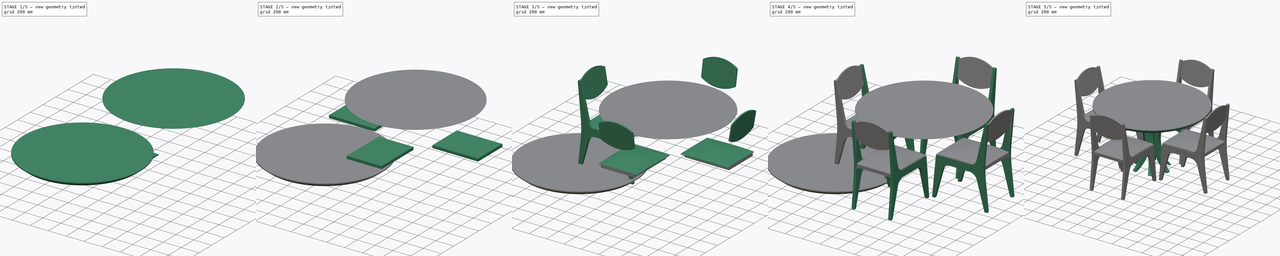
[diagram: build sequence overview — one tinted view per stage of 5, left to right]
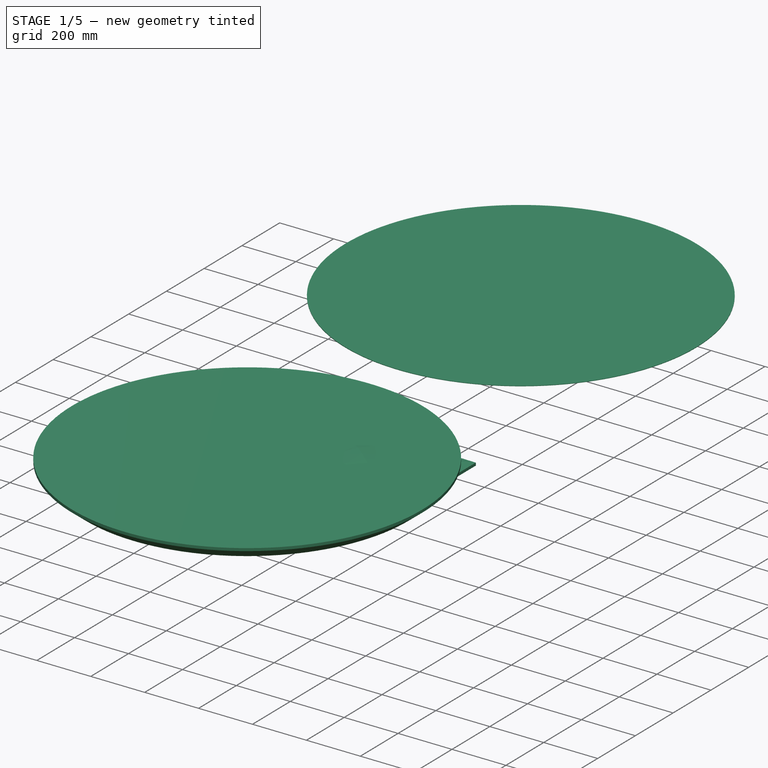
[diagram: stage 1 of 5 — iso view after this stage's code; geometry added in this stage tinted green]
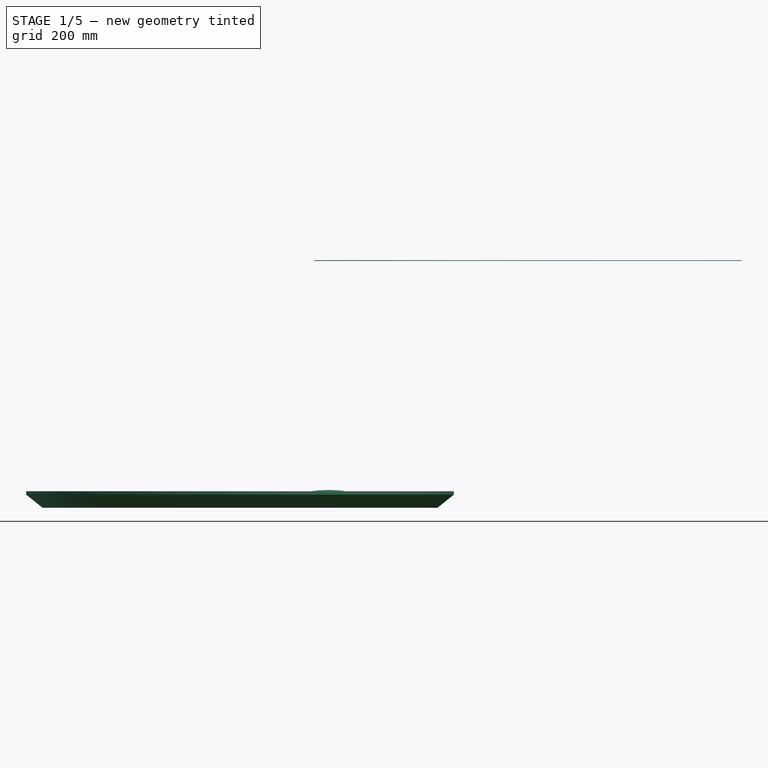
[diagram: stage 1 of 5 — front view after this stage's code; geometry added in this stage tinted green]
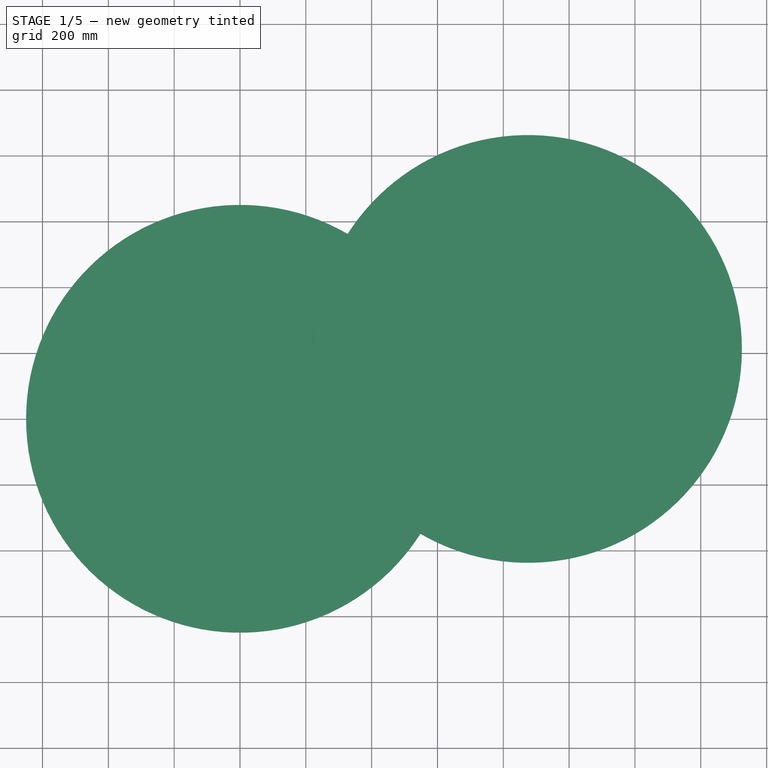
[diagram: stage 1 of 5 — top view after this stage's code; geometry added in this stage tinted green]
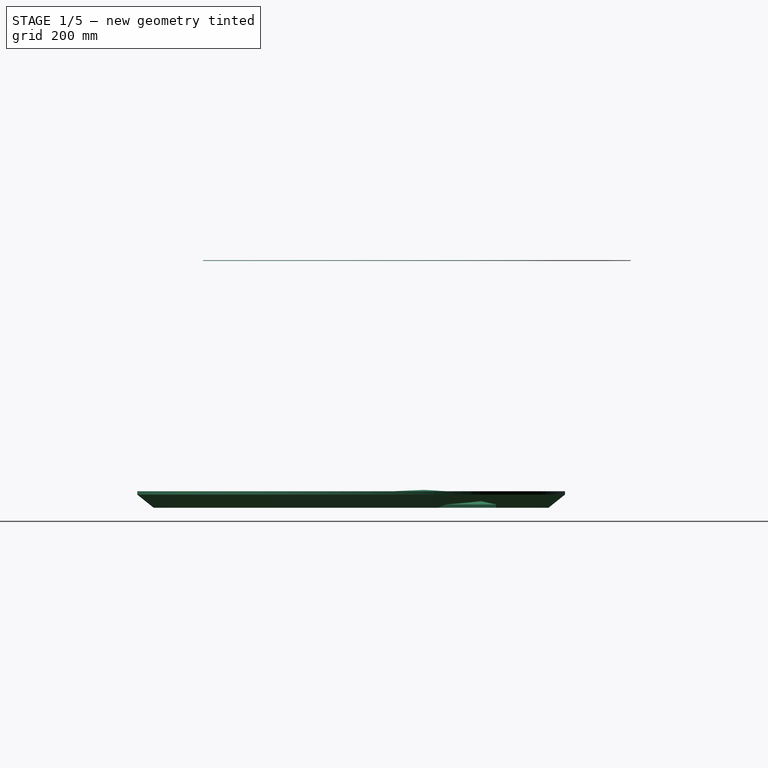
[diagram: stage 1 of 5 — right view after this stage's code; geometry added in this stage tinted green]
FCSTD DOCUMENT  (FreeCAD 0.21R33668 +26 (Git))
Label: Mesa redonda
License: All rights reserved
objects: Sketcher::SketchObject×10, Part::FeaturePython×9, Part::Extrusion×6, PartDesign::Chamfer×2, PartDesign::Body×2, PartDesign::Pad×1, Part::Part2DObjectPython×1, Surface::Filling×1, Part::Offset×1, PartDesign::Fillet×1, Part::Compound×1
note: 39 computed .brp shape members not serialized (recipe doc carries the construction recipe); baked Part::Feature solids carry a one-line shape summary decoded from their .brp

FEATURE [Part::FeaturePython] Point  label="Propriedades Mesa Circular"  # WARN: FeaturePython — macro-defined, semantics opaque (R4)
  Altura = 750
  AlturaAcento = 450
  AlturaEscora = 900
  ComprimentoAcento = 450
  Diametro = 1300
  EspessuraMadeira = 30
  EspessuraPe = 50
  EspessuraTampo = 50
  LarguraAcento = 450
  LarguraPe = 30
  NumeroCadeiras = 4
  X = 0
  Y = 0
  Z = 0
FEATURE [Sketcher::SketchObject] Sketch
  FullyConstrained = true
  MapMode = 5
  Support = -> [XY_Plane]
  expr: Constraints[1] = <<Propriedades Mesa Circular>>.Diametro
  sketch-geometry (1):
    g0: Circle CenterX=0 CenterY=0 CenterZ=0 NormalX=0 NormalY=0 NormalZ=1 AngleXU=0 Radius=650
  constraints (2):
    c: Coincident(g0,g-1)
    c: Diameter(g0) = 1300
FEATURE [PartDesign::Pad] Pad
  Direction = (0,0,1)
  Length = 50
  Length2 = 10
  Profile = -> Sketch
  ReferenceAxis = -> Sketch [N_Axis]
  Type = 0
  expr: Length = <<Propriedades Mesa Circular>>.EspessuraTampo
FEATURE [Sketcher::SketchObject] Sketch009
  FullyConstrained = true
  expr: Constraints[2] = <<Propriedades Mesa Circular>>.ComprimentoAcento + 3 * <<Propriedades Mesa Circular>>.LarguraPe
  sketch-geometry (1):
    g0: LineSegment StartX=0 StartY=0 StartZ=0 EndX=540 EndY=0 EndZ=0
  constraints (3):
    c: Coincident(g0,g-1)
    c: Horizontal(g0)
    c: DistanceX(g0,g0) = 540
FEATURE [Sketcher::SketchObject] Sketch010
  FullyConstrained = true
  expr: Constraints[2] = <<Propriedades Mesa Circular>>.LarguraAcento - 1 cm
  sketch-geometry (1):
    g0: LineSegment StartX=0 StartY=0 StartZ=0 EndX=0 EndY=440 EndZ=0
  constraints (3):
    c: Coincident(g0,g-1)
    c: Vertical(g0)
    c: DistanceY(g0,g0) = 440
FEATURE [Part::Part2DObjectPython] Clone2D  label="Sketch009 (2D)"  # Draft 2D object (typed FeaturePython)
  Fuse = false
  Objects = -> [Sketch009]
  Placement = pos=(0,440,0) rot=(0,0,1;0rad)
  Scale = (1,1,1)
  expr: .Placement.Base.y = <<Propriedades Mesa Circular>>.LarguraAcento - 1 cm
FEATURE [Sketcher::SketchObject] Sketch011
  FullyConstrained = true
  Placement = pos=(540,6.57e-14,0) rot=(0,0,1;0rad)
  expr: .Placement.Base.x = <<Propriedades Mesa Circular>>.ComprimentoAcento + 3 * <<Propriedades Mesa Circular>>.LarguraPe
  expr: Constraints[2] = <<Propriedades Mesa Circular>>.LarguraAcento - 1 cm
  sketch-geometry (1):
    g0: LineSegment StartX=0 StartY=0 StartZ=0 EndX=0 EndY=440 EndZ=0
  constraints (3):
    c: Coincident(g0,g-1)
    c: Vertical(g0)
    c: DistanceY(g0,g0) = 440
FEATURE [Sketcher::SketchObject] Sketch013
  FullyConstrained = false
  Placement = pos=(225,3.31e-14,0) rot=(0.57735,0.57735,0.57735;2.0944rad)
  expr: .Placement.Base.x = <<Propriedades Mesa Circular>>.ComprimentoAcento / 2
  sketch-geometry (6):
    g0: Circle CenterX=78.9269 CenterY=31.6573 CenterZ=0 NormalX=0 NormalY=0 NormalZ=1 AngleXU=0 Radius=1
    g1: Circle CenterX=226.39 CenterY=57.9417 CenterZ=0 NormalX=0 NormalY=0 NormalZ=1 AngleXU=0 Radius=1
    g2: Circle CenterX=385.699 CenterY=24.2733 CenterZ=0 NormalX=0 NormalY=0 NormalZ=1 AngleXU=0 Radius=1
    g3: BSplineCurve PolesCount=3 KnotsCount=2 Degree=2 IsPeriodic=0
    g4: GeomPoint X=78.9269 Y=31.6573 Z=0
    g5: GeomPoint X=385.699 Y=24.2733 Z=0
  constraints (8):
    c: Weight(g0) = 1
    c: Equal(g0,g1)
    c: Equal(g0,g2)
    c: InternalAlignment(g0,g3)
    c: InternalAlignment(g1,g3)
    c: InternalAlignment(g2,g3)
    c: InternalAlignment(g4,g3)
    c: InternalAlignment(g5,g3)
FEATURE [Surface::Filling] Surface
  Anisotropy = false
  BoundaryEdges = -> [Sketch010,Sketch009,Sketch011,Clone2D]
  BoundaryOrder = [0,0,0,0]
  Degree = 3
  Iterations = 2
  MaximumDegree = 8
  MaximumSegments = 9
  PointsOnCurve = 15
  TolAngular = 0.01
  TolCurvature = 0.1
  Tolerance2d = 1e-05
  Tolerance3d = 0.0001
  UnboundEdges = -> [Sketch013]
  UnboundOrder = [0]
FEATURE [Part::Offset] Offset
  Fill = true
  Intersection = false
  Join = 0
  Mode = 0
  SelfIntersection = false
  Source = -> Surface
  Value = 10
FEATURE [PartDesign::Chamfer] Chamfer001
  Angle = 45
  Base = -> Pad [Face2]
  BaseFeature = -> Pad
  ChamferType = 1
  FlipDirection = false
  Size = 50
  Size2 = 40
  SupportTransform = false
  UseAllEdges = false
  expr: Size = <<Propriedades Mesa Circular>>.EspessuraTampo
  expr: Size2 = <<Propriedades Mesa Circular>>.EspessuraTampo * 0.8
FEATURE [PartDesign::Body] Body  label="Tampo-mesa"
  Group = -> [Sketch,Pad,Chamfer001]
  Origin = -> Origin
  Placement = pos=(875,200,700) rot=(0,0,1;0rad)
  Tip = -> Chamfer001
  expr: .Placement.Base.x = <<Propriedades Mesa Circular>>.Diametro / 2 + <<Propriedades Mesa Circular>>.ComprimentoAcento / 2
  expr: .Placement.Base.z = <<Propriedades Mesa Circular>>.Altura - <<Propriedades Mesa Circular>>.EspessuraTampo
FEATURE [Part::Extrusion] Extrude006  label="Verniz mesa"
  Base = -> Sketch
  Dir = (0,0,1)
  DirMode = 2
  FaceMakerClass = Part::FaceMakerBullseye
  LengthFwd = 2
  LengthRev = 0
  Placement = pos=(875,200,750) rot=(0,0,1;0rad)
  Solid = true
  Symmetric = false
  expr: .Placement.Base.x = <<Propriedades Mesa Circular>>.Diametro / 2 + <<Propriedades Mesa Circular>>.ComprimentoAcento / 2
  expr: .Placement.Base.z = <<Propriedades Mesa Circular>>.Altura
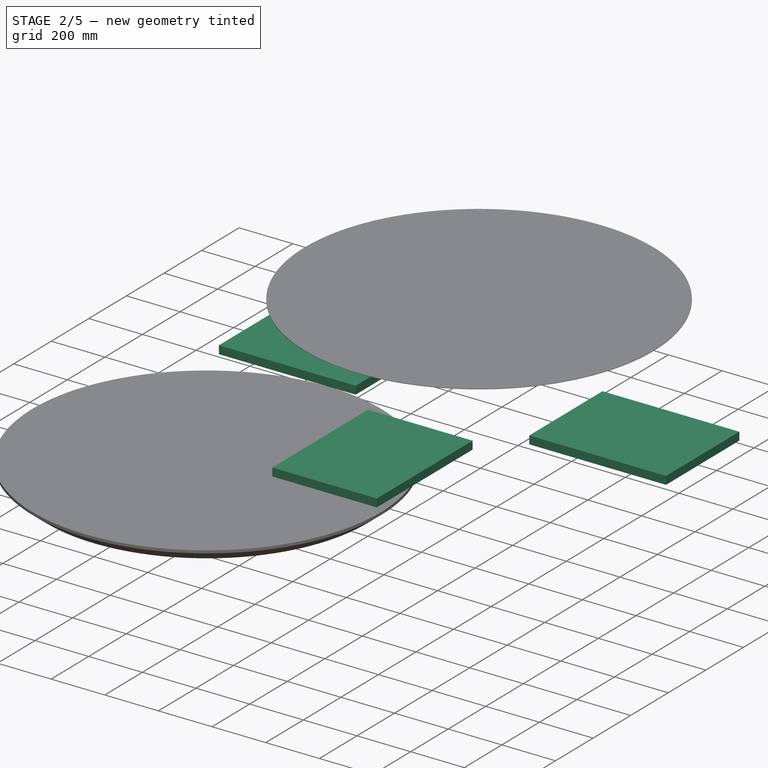
[diagram: stage 2 of 5 — iso view after this stage's code; geometry added in this stage tinted green]
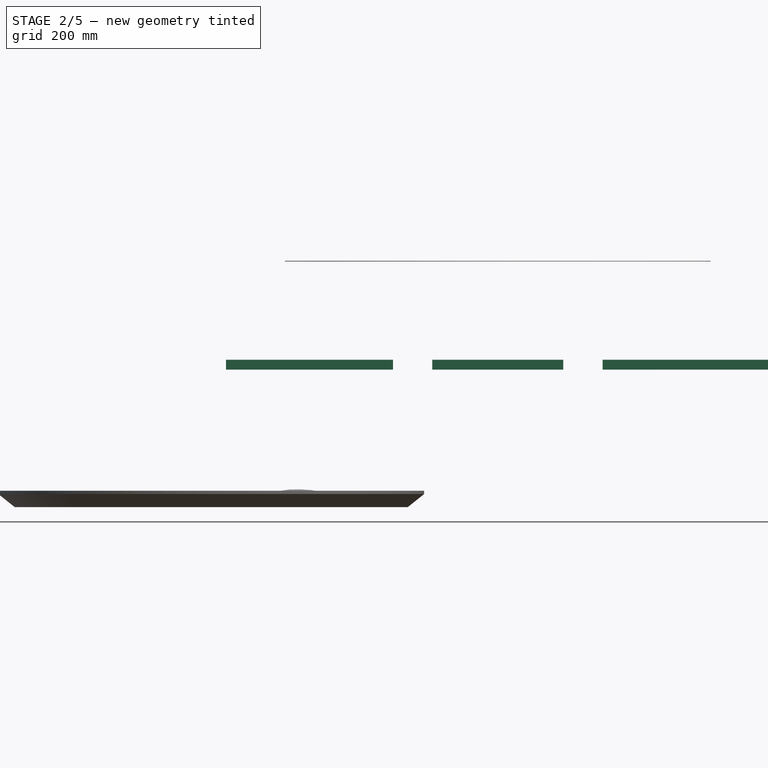
[diagram: stage 2 of 5 — front view after this stage's code; geometry added in this stage tinted green]
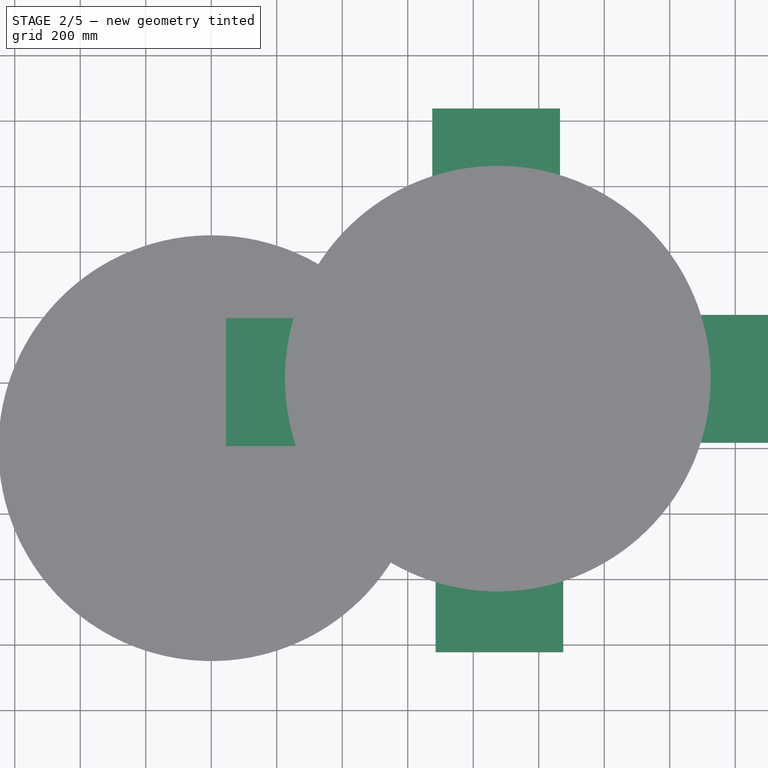
[diagram: stage 2 of 5 — top view after this stage's code; geometry added in this stage tinted green]
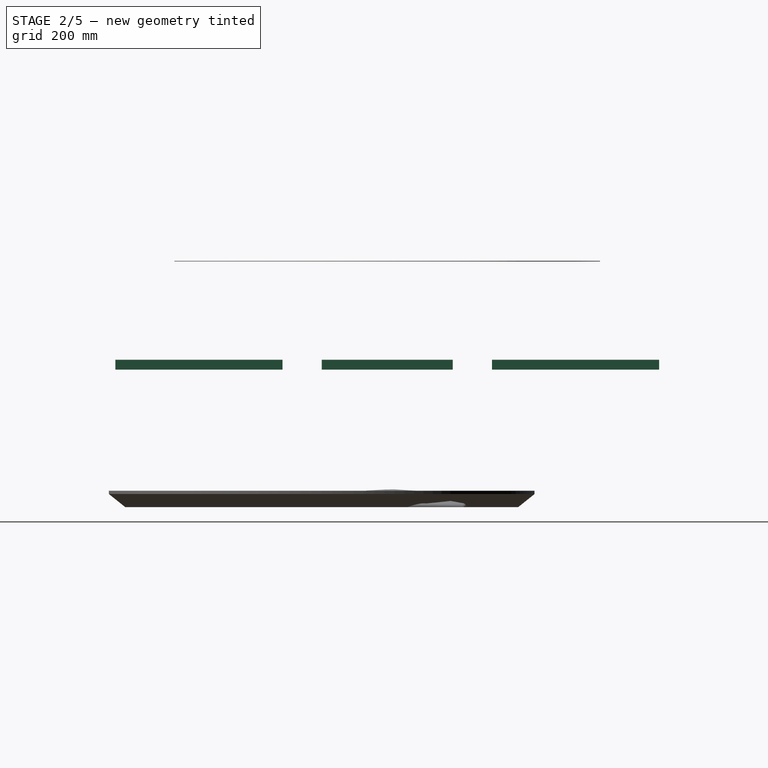
[diagram: stage 2 of 5 — right view after this stage's code; geometry added in this stage tinted green]
FEATURE [Sketcher::SketchObject] Sketch006
  FullyConstrained = true
  expr: Constraints[10] = <<Propriedades Mesa Circular>>.ComprimentoAcento + 3 * <<Propriedades Mesa Circular>>.LarguraPe - <<Propriedades Mesa Circular>>.EspessuraMadeira
  expr: Constraints[9] = <<Propriedades Mesa Circular>>.LarguraAcento - 2 * <<Propriedades Mesa Circular>>.EspessuraMadeira
  sketch-geometry (4):
    g0: LineSegment StartX=0 StartY=0 StartZ=0 EndX=510 EndY=0 EndZ=0
    g1: LineSegment StartX=510 StartY=0 StartZ=0 EndX=510 EndY=390 EndZ=0
    g2: LineSegment StartX=510 StartY=390 StartZ=0 EndX=0 EndY=390 EndZ=0
    g3: LineSegment StartX=0 StartY=390 StartZ=0 EndX=0 EndY=0 EndZ=0
  constraints (11):
    c: Coincident(g0,g1)
    c: Coincident(g1,g2)
    c: Coincident(g2,g3)
    c: Coincident(g3,g0)
    c: Horizontal(g0)
    c: Horizontal(g2)
    c: Vertical(g1)
    c: Vertical(g3)
    c: Coincident(g0,g-1)
    c: DistanceY(g1,g1) = 390
    c: DistanceX(g2,g2) = 510
FEATURE [Part::Extrusion] Extrude005  label="Extrude007"
  Base = -> Sketch006
  Dir = (0,0,1)
  DirMode = 2
  FaceMakerClass = Part::FaceMakerBullseye
  LengthFwd = 30
  LengthRev = 0
  Placement = pos=(45,0,420) rot=(0,0,1;0rad)
  Solid = true
  Symmetric = false
  expr: .Placement.Base.x = <<Propriedades Mesa Circular>>.LarguraPe * 1.5
  expr: .Placement.Base.z = <<Propriedades Mesa Circular>>.AlturaAcento - <<Propriedades Mesa Circular>>.LarguraPe
  expr: LengthFwd = <<Propriedades Mesa Circular>>.LarguraPe
FEATURE [PartDesign::Fillet] Fillet001
  Base = -> Offset [Face6,Edge7,Edge5,Edge8,Edge10]
  Radius = 9.8
  SupportTransform = false
  UseAllEdges = false
FEATURE [Part::FeaturePython] Array006  label="Tampo Cadeira "  # Draft array (typed FeaturePython)
  Angle = 360
  ArrayType = 1
  Axis = (0,0,1)
  Base = -> Extrude005
  Center = (875,200,0)
  Count = 4
  Fuse = true
  IntervalAxis = (0,0,0)
  IntervalX = (1000,0,0)
  IntervalY = (0,100,0)
  IntervalZ = (0,0,100)
  NumberCircles = 3
  NumberPolar = 4
  NumberX = 2
  NumberY = 1
  NumberZ = 1
  RadialDistance = 50
  Symmetry = 1
  TangentialDistance = 25
  expr: .Center.x = <<Propriedades Mesa Circular>>.Diametro / 2 + <<Propriedades Mesa Circular>>.ComprimentoAcento / 2
  expr: NumberPolar = <<Propriedades Mesa Circular>>.NumeroCadeiras
FEATURE [PartDesign::Chamfer] Chamfer
  Angle = 45
  Base = -> Fillet001
  BaseFeature = -> Fillet001
  ChamferType = 1
  FlipDirection = false
  Size = 5
  Size2 = 1
  SupportTransform = false
  UseAllEdges = false
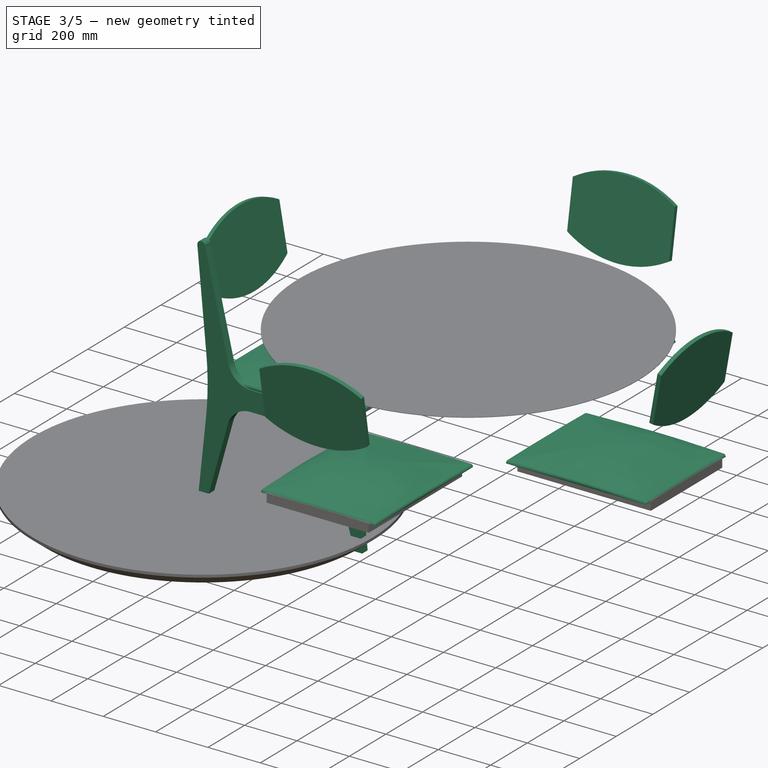
[diagram: stage 3 of 5 — iso view after this stage's code; geometry added in this stage tinted green]
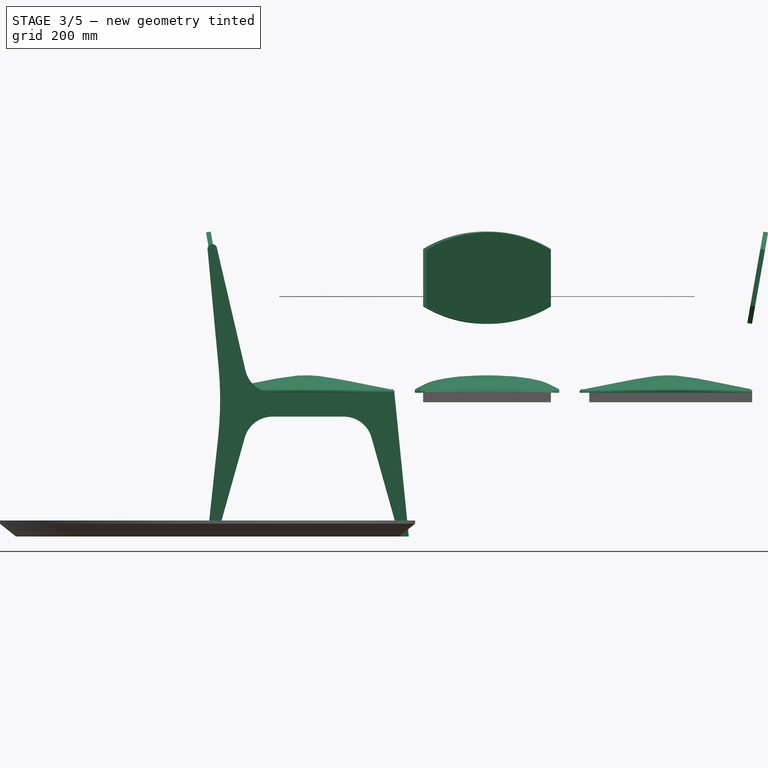
[diagram: stage 3 of 5 — front view after this stage's code; geometry added in this stage tinted green]
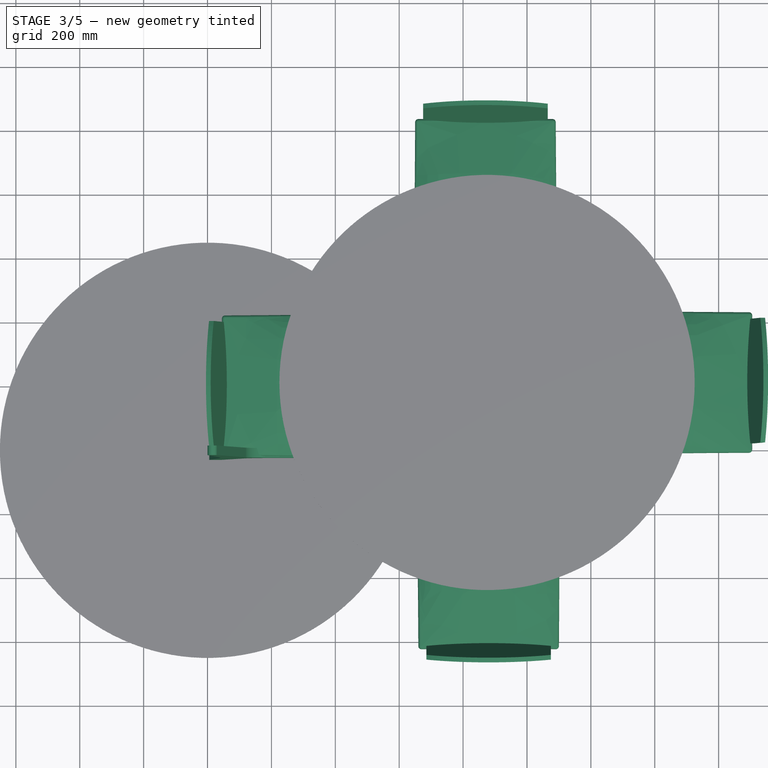
[diagram: stage 3 of 5 — top view after this stage's code; geometry added in this stage tinted green]
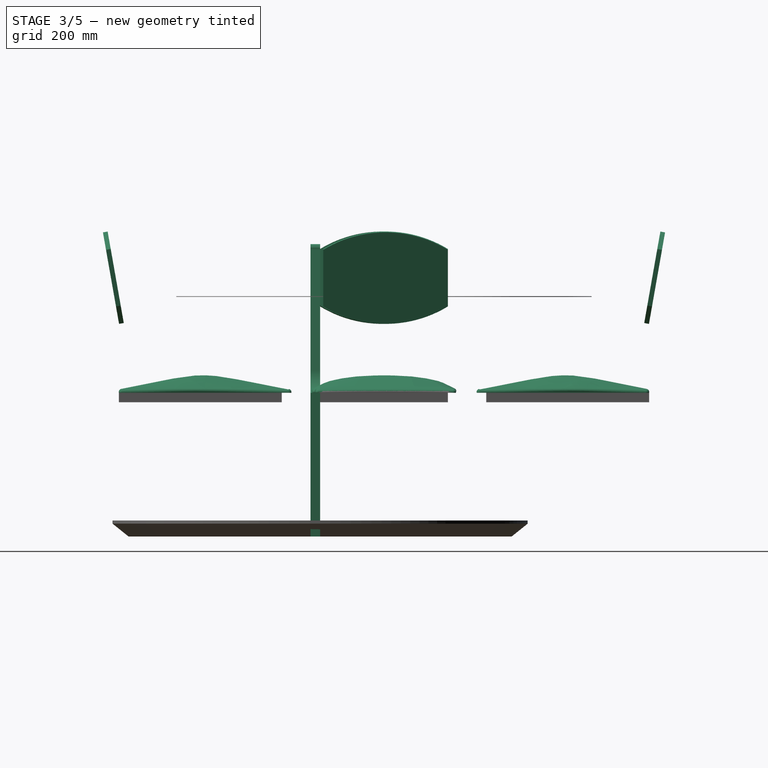
[diagram: stage 3 of 5 — right view after this stage's code; geometry added in this stage tinted green]
FEATURE [Sketcher::SketchObject] Sketch004
  FullyConstrained = true
  Placement = pos=(0,0,0) rot=(1,0,0;1.5708rad)
  expr: Constraints[15] = <<Propriedades Mesa Circular>>.LarguraPe * 3
  expr: Constraints[16] = <<Propriedades Mesa Circular>>.LarguraPe * 3
  expr: Constraints[19] = <<Propriedades Mesa Circular>>.LarguraPe
  expr: Constraints[20] = <<Propriedades Mesa Circular>>.ComprimentoAcento
  expr: Constraints[21] = <<Propriedades Mesa Circular>>.LarguraPe * 2.5
  expr: Constraints[28] = <<Propriedades Mesa Circular>>.LarguraPe
  expr: Constraints[29] = <<Propriedades Mesa Circular>>.AlturaAcento
  expr: Constraints[2] = <<Propriedades Mesa Circular>>.LarguraPe * 1.5
  expr: Constraints[30] = <<Propriedades Mesa Circular>>.AlturaAcento - <<Propriedades Mesa Circular>>.LarguraPe
  expr: Constraints[31] = <<Propriedades Mesa Circular>>.AlturaEscora
  expr: Constraints[32] = <<Propriedades Mesa Circular>>.LarguraPe * 1.5
  expr: Constraints[45] = <<Propriedades Mesa Circular>>.AlturaEscora * 1.222
  expr: Constraints[47] = <<Propriedades Mesa Circular>>.LarguraPe * 3
  sketch-geometry (21):
    g0: LineSegment StartX=0 StartY=0 StartZ=0 EndX=33.2317 EndY=310.163 EndZ=0
    g1: LineSegment StartX=34.689 StartY=529.984 StartZ=0 EndX=0 EndY=900 EndZ=0
    g2: LineSegment StartX=0 StartY=0 StartZ=0 EndX=30 EndY=0 EndZ=0
    g3: LineSegment StartX=30 StartY=0 StartZ=0 EndX=116.595 EndY=309.267 EndZ=0
    g4: LineSegment StartX=203.261 StartY=375 StartZ=0 EndX=426.739 EndY=375 EndZ=0
    g5: LineSegment StartX=513.405 StartY=309.267 StartZ=0 EndX=600 EndY=0 EndZ=0
    g6: LineSegment StartX=600 StartY=0 StartZ=0 EndX=630 EndY=0 EndZ=0
    g7: LineSegment StartX=630 StartY=0 StartZ=0 EndX=585 EndY=450 EndZ=0
    g8: LineSegment StartX=585 StartY=450 StartZ=0 EndX=206.418 EndY=450 EndZ=0
    g9: LineSegment StartX=118.772 StartY=519.549 StartZ=0 EndX=30 EndY=900 EndZ=0
    g10: LineSegment StartX=135 StartY=450 StartZ=0 EndX=135 EndY=375 EndZ=0
    g11: LineSegment StartX=1.8e-15 StartY=900 StartZ=0 EndX=30 EndY=900 EndZ=0
    g12: ArcOfCircle CenterX=15 CenterY=900 CenterZ=0 NormalX=0 NormalY=0 NormalZ=1 AngleXU=0 Radius=15 StartAngle=-2.7e-15 EndAngle=3.14159
    g13: ArcOfCircle CenterX=203.261 CenterY=285 CenterZ=0 NormalX=0 NormalY=0 NormalZ=1 AngleXU=0 Radius=90 StartAngle=1.5708 EndAngle=2.86858
    g14: GeomPoint X=135 Y=375 Z=0
    g15: ArcOfCircle CenterX=426.739 CenterY=285 CenterZ=0 NormalX=0 NormalY=0 NormalZ=1 AngleXU=0 Radius=90 StartAngle=0.273009 EndAngle=1.5708
    g16: GeomPoint X=495 Y=375 Z=0
    g17: ArcOfCircle CenterX=-1060.31 CenterY=427.328 CenterZ=0 NormalX=0 NormalY=0 NormalZ=1 AngleXU=0 Radius=1099.8 StartAngle=6.17645 EndAngle=6.37666
    g18: GeomPoint X=45 Y=420 Z=0
    g19: ArcOfCircle CenterX=206.418 CenterY=540 CenterZ=0 NormalX=0 NormalY=0 NormalZ=1 AngleXU=0 Radius=90 StartAngle=3.37082 EndAngle=4.71239
    g20: GeomPoint X=135 Y=450 Z=0
  constraints (53):
    c: Coincident(g0,g-1)
    c: PointOnObject(g1,g-2)
    c: DistanceX(g18) = 45
    c: Coincident(g2,g0)
    c: PointOnObject(g2,g-1)
    c: Coincident(g3,g2)
    c: Horizontal(g4)
    c: PointOnObject(g5,g-1)
    c: Coincident(g6,g5)
    c: Horizontal(g6)
    c: Coincident(g8,g7)
    c: Horizontal(g8)
    c: Coincident(g10,g20)
    c: Coincident(g10,g14)
    c: Vertical(g10)
    c: DistanceX(g18,g20) = 90
    c: DistanceX(g16,g7) = 90
    c: Coincident(g7,g6)
    c: Equal(g2,g6)
    c: DistanceX(g6,g6) = 30
    c: DistanceX(g20,g8) = 450
    c: DistanceY(g10,g10) = 75
    c: Coincident(g11,g1)
    c: Coincident(g11,g9)
    c: Horizontal(g11)
    c: Coincident(g12,g1)
    c: Coincident(g12,g9)
    c: PointOnObject(g12,g11)
    c: DistanceX(g11,g11) = 30
    c: DistanceY(g7) = 450
    c: DistanceY(g18) = 420
    c: DistanceY(g1) = 900
    c: DistanceX(g7,g7) = 45
    c: PointOnObject(g14,g3)
    c: PointOnObject(g14,g4)
    c: Tangent(g3,g13) = 1.5708
    c: Tangent(g4,g13) = 1.5708
    c: PointOnObject(g16,g4)
    c: PointOnObject(g16,g5)
    c: Tangent(g4,g15) = 1.5708
    c: Tangent(g5,g15) = 1.5708
    c: PointOnObject(g18,g1)
    c: PointOnObject(g18,g0)
    c: Tangent(g1,g17) = -1.5708
    c: Tangent(g0,g17) = -1.5708
    c: Radius(g17) = 1099.8
    c: Equal(g13,g15)
    c: Radius(g13) = 90
    c: PointOnObject(g20,g9)
    c: PointOnObject(g20,g8)
    c: Tangent(g9,g19) = 1.5708
    c: Tangent(g8,g19) = 1.5708
    c: Equal(g13,g19)
FEATURE [Part::Extrusion] Extrude003  label="Extrude004"
  Base = -> Sketch004
  Dir = (0,-1,2e-16)
  DirMode = 2
  FaceMakerClass = Part::FaceMakerBullseye
  LengthFwd = 30
  LengthRev = 0
  Solid = true
  Symmetric = false
  expr: LengthFwd = <<Propriedades Mesa Circular>>.EspessuraMadeira
FEATURE [Sketcher::SketchObject] Sketch005
  FullyConstrained = true
  Placement = pos=(0,0,0) rot=(0.57735,0.57735,0.57735;2.0944rad)
  expr: Constraints[11] = <<Propriedades Mesa Circular>>.AlturaEscora / 2
  expr: Constraints[14] = <<Propriedades Mesa Circular>>.AlturaEscora * 0.1
  expr: Constraints[5] = <<Propriedades Mesa Circular>>.LarguraAcento - 2 * <<Propriedades Mesa Circular>>.EspessuraMadeira
  expr: Constraints[7] = <<Propriedades Mesa Circular>>.AlturaEscora * 0.2
  sketch-geometry (5):
    g0: LineSegment StartX=390 StartY=-4.8885e-12 StartZ=0 EndX=390 EndY=180 EndZ=0
    g1: LineSegment StartX=1.88152e-11 StartY=180 StartZ=0 EndX=1.88152e-11 EndY=-4.8317e-12 EndZ=0
    g2: ArcOfCircle CenterX=195 CenterY=315 CenterZ=0 NormalX=0 NormalY=0 NormalZ=1 AngleXU=0 Radius=370.473 StartAngle=4.15808 EndAngle=5.2667
    g3: ArcOfCircle CenterX=195 CenterY=-135 CenterZ=0 NormalX=0 NormalY=0 NormalZ=1 AngleXU=0 Radius=370.473 StartAngle=1.01649 EndAngle=2.1251
    g4: LineSegment StartX=0 StartY=90 StartZ=0 EndX=390 EndY=90 EndZ=0
  constraints (16):
    c: Vertical(g0)
    c: Vertical(g1)
    c: Coincident(g2,g0)
    c: Coincident(g3,g1)
    c: Coincident(g3,g0)
    c: DistanceX(g1,g0) = 390
    c: Coincident(g1,g-1)
    c: DistanceY(g0,g0) = 180
    c: Equal(g0,g1)
    c: PointOnObject(g0,g-1)
    c: Coincident(g2,g1)
    c: DistanceY(g3,g2) = 450
    c: PointOnObject(g4,g1)
    c: PointOnObject(g4,g0)
    c: DistanceY(g4) = 90
    c: Symmetric(g2,g3,g4)
FEATURE [Part::Extrusion] Extrude004  label="Extrude006"
  Base = -> Sketch005
  Dir = (1,0,0)
  DirMode = 2
  FaceMakerClass = Part::FaceMakerBullseye
  LengthFwd = 15
  LengthRev = 0
  Placement = pos=(36,0,720) rot=(0,-1,0;0.174533rad)
  Solid = true
  Symmetric = false
  expr: .Placement.Base.x = <<Propriedades Mesa Circular>>.LarguraPe * 1.2
  expr: .Placement.Base.z = <<Propriedades Mesa Circular>>.AlturaEscora * 0.8
  expr: .Placement.Rotation.Angle = <<Propriedades Mesa Circular>>.AlturaEscora / <<Propriedades Mesa Circular>>.AlturaAcento * 5
  expr: LengthFwd = <<Propriedades Mesa Circular>>.EspessuraMadeira / 2
FEATURE [Part::FeaturePython] Array004  label="Escora "  # Draft array (typed FeaturePython)
  Angle = 360
  ArrayType = 1
  Axis = (0,0,1)
  Base = -> Extrude004
  Center = (875,200,0)
  Count = 4
  Fuse = true
  IntervalAxis = (0,0,0)
  IntervalX = (1000,0,0)
  IntervalY = (0,100,0)
  IntervalZ = (0,0,100)
  NumberCircles = 3
  NumberPolar = 4
  NumberX = 2
  NumberY = 1
  NumberZ = 1
  RadialDistance = 50
  Symmetry = 1
  TangentialDistance = 25
  expr: .Center.x = <<Propriedades Mesa Circular>>.Diametro / 2 + <<Propriedades Mesa Circular>>.ComprimentoAcento / 2
  expr: NumberPolar = <<Propriedades Mesa Circular>>.NumeroCadeiras
FEATURE [PartDesign::Body] Body001  label="Corpo"
  Group = -> [Sketch009,Sketch010,Clone2D,Sketch011,Sketch013,Offset,Fillet001,Chamfer]
  Origin = -> Origin001
  Placement = pos=(45,-25,450) rot=(0,0,1;0rad)
  Tip = -> Chamfer
  expr: .Placement.Base.x = <<Propriedades Mesa Circular>>.LarguraPe * 1.5
  expr: .Placement.Base.y = -<<Propriedades Mesa Circular>>.EspessuraMadeira + 0.5 cm
  expr: .Placement.Base.z = <<Propriedades Mesa Circular>>.AlturaAcento
FEATURE [Part::FeaturePython] Array005  label="Almofada "  # Draft array (typed FeaturePython)
  Angle = 360
  ArrayType = 1
  Axis = (0,0,1)
  Base = -> Body001
  Center = (875,200,0)
  Count = 4
  Fuse = true
  IntervalAxis = (0,0,0)
  IntervalX = (1000,0,0)
  IntervalY = (0,100,0)
  IntervalZ = (0,0,100)
  NumberCircles = 3
  NumberPolar = 4
  NumberX = 2
  NumberY = 1
  NumberZ = 1
  RadialDistance = 50
  Symmetry = 1
  TangentialDistance = 25
  expr: .Center.x = <<Propriedades Mesa Circular>>.Diametro / 2 + <<Propriedades Mesa Circular>>.ComprimentoAcento / 2
  expr: NumberPolar = <<Propriedades Mesa Circular>>.NumeroCadeiras
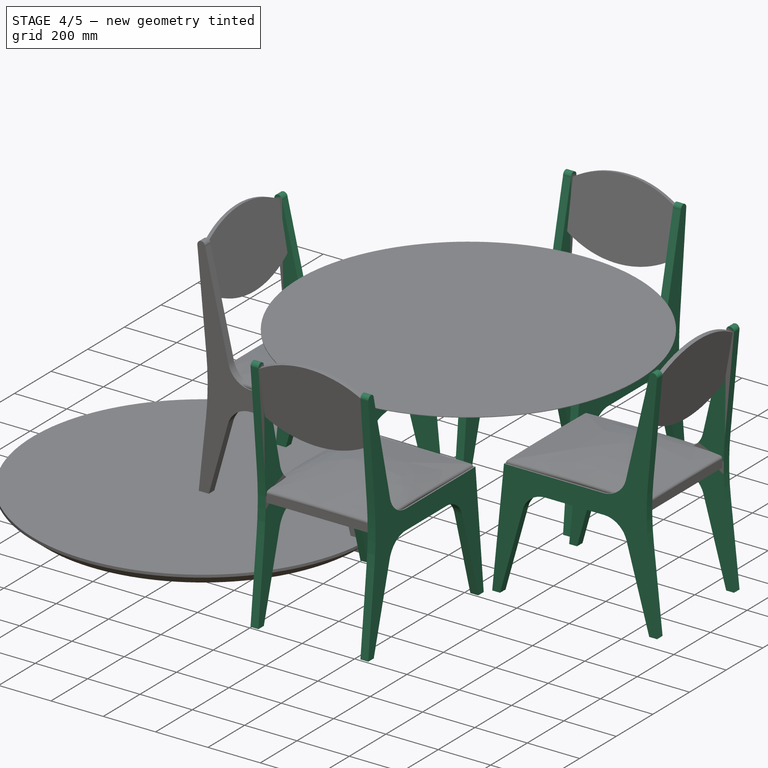
[diagram: stage 4 of 5 — iso view after this stage's code; geometry added in this stage tinted green]
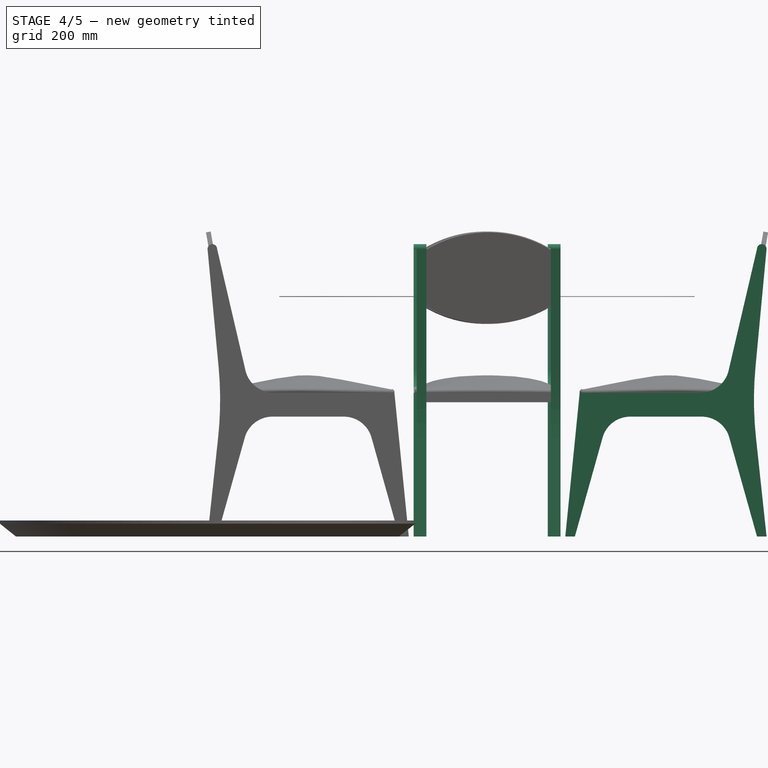
[diagram: stage 4 of 5 — front view after this stage's code; geometry added in this stage tinted green]
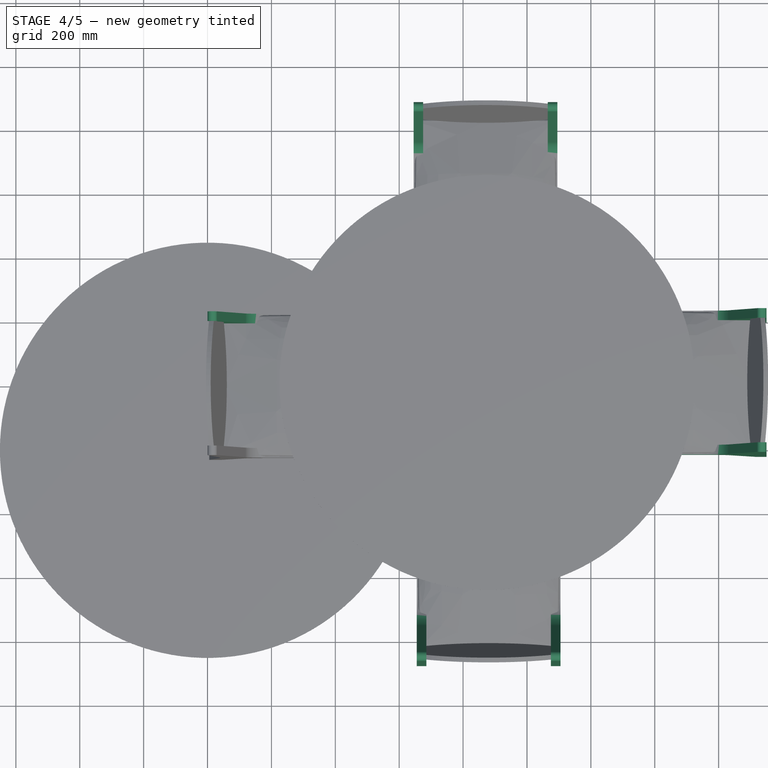
[diagram: stage 4 of 5 — top view after this stage's code; geometry added in this stage tinted green]
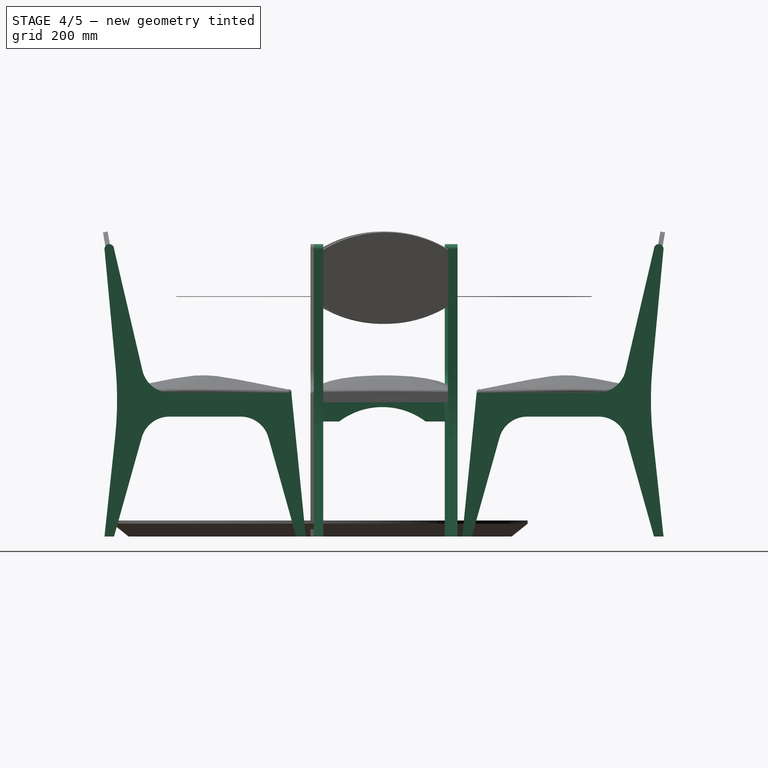
[diagram: stage 4 of 5 — right view after this stage's code; geometry added in this stage tinted green]
FEATURE [Sketcher::SketchObject] Sketch003
  FullyConstrained = true
  Placement = pos=(0,0,0) rot=(0.57735,0.57735,0.57735;2.0944rad)
  expr: Constraints[10] = <<Propriedades Mesa Circular>>.LarguraAcento - 2 * <<Propriedades Mesa Circular>>.EspessuraMadeira
  expr: Constraints[14] = <<Propriedades Mesa Circular>>.LarguraPe * 2
  expr: Constraints[21] = <<Propriedades Mesa Circular>>.LarguraPe * 1.5
  expr: Constraints[9] = <<Propriedades Mesa Circular>>.LarguraPe * 3
  sketch-geometry (7):
    g0: LineSegment StartX=0 StartY=0 StartZ=0 EndX=60 EndY=0 EndZ=0
    g1: LineSegment StartX=390 StartY=0 StartZ=0 EndX=390 EndY=90 EndZ=0
    g2: LineSegment StartX=390 StartY=90 StartZ=0 EndX=0 EndY=90 EndZ=0
    g3: LineSegment StartX=0 StartY=90 StartZ=0 EndX=0 EndY=0 EndZ=0
    g4: ArcOfCircle CenterX=195 CenterY=-180 CenterZ=0 NormalX=0 NormalY=0 NormalZ=1 AngleXU=0 Radius=225 StartAngle=0.927295 EndAngle=2.2143
    g5: LineSegment StartX=330 StartY=0 StartZ=0 EndX=390 EndY=0 EndZ=0
    g6: LineSegment StartX=0 StartY=45 StartZ=0 EndX=390 EndY=45 EndZ=0
  constraints (22):
    c: Coincident(g5,g1)
    c: Coincident(g1,g2)
    c: Coincident(g2,g3)
    c: Coincident(g3,g0)
    c: Horizontal(g0)
    c: Horizontal(g2)
    c: Vertical(g1)
    c: Vertical(g3)
    c: Coincident(g0,g-1)
    c: DistanceY(g1,g1) = 90
    c: DistanceX(g2,g2) = 390
    c: Coincident(g0,g4)
    c: Coincident(g5,g4)
    c: Equal(g0,g5)
    c: DistanceX(g0,g0) = 60
    c: PointOnObject(g4,g-1)
    c: PointOnObject(g1,g-1)
    c: PointOnObject(g6,g3)
    c: PointOnObject(g6,g1)
    c: Horizontal(g6)
    c: Tangent(g6,g4)
    c: DistanceY(g1,g6) = 45
FEATURE [Part::Extrusion] Extrude002  label="Extrude003"
  Base = -> Sketch003
  Dir = (1,0,0)
  DirMode = 2
  FaceMakerClass = Part::FaceMakerBullseye
  LengthFwd = 30
  LengthRev = 0
  Placement = pos=(555,0,360) rot=(0,1,0;0rad)
  Solid = true
  Symmetric = false
  expr: .Placement.Base.x = <<Propriedades Mesa Circular>>.LarguraPe * 4.5 + <<Propriedades Mesa Circular>>.ComprimentoAcento - <<Propriedades Mesa Circular>>.EspessuraMadeira
  expr: .Placement.Base.z = <<Propriedades Mesa Circular>>.AlturaAcento - <<Propriedades Mesa Circular>>.LarguraPe * 3
  expr: LengthFwd = <<Propriedades Mesa Circular>>.EspessuraMadeira
FEATURE [Part::FeaturePython] Clone  label="Extrude005"  # Draft clone (typed FeaturePython)
  AttacherType = Attacher::AttachEngine3D
  Fuse = false
  Objects = -> [Extrude003]
  Placement = pos=(0,420,0) rot=(0,0,1;0rad)
  Scale = (1,1,1)
  expr: .Placement.Base.y = <<Propriedades Mesa Circular>>.LarguraAcento - <<Propriedades Mesa Circular>>.EspessuraMadeira
FEATURE [Part::FeaturePython] Array002  label="Pé Cadeira "  # Draft array (typed FeaturePython)
  Angle = 360
  ArrayType = 1
  Axis = (0,0,1)
  Base = -> Extrude003
  Center = (875,200,0)
  Count = 4
  Fuse = true
  IntervalAxis = (0,0,0)
  IntervalX = (1000,0,0)
  IntervalY = (0,100,0)
  IntervalZ = (0,0,100)
  NumberCircles = 3
  NumberPolar = 4
  NumberX = 2
  NumberY = 1
  NumberZ = 1
  RadialDistance = 50
  Symmetry = 1
  TangentialDistance = 25
  expr: .Center.x = <<Propriedades Mesa Circular>>.Diametro / 2 + <<Propriedades Mesa Circular>>.ComprimentoAcento / 2
  expr: NumberPolar = <<Propriedades Mesa Circular>>.NumeroCadeiras
FEATURE [Part::FeaturePython] Array003  label="Pé Cadeira 001"  # Draft array (typed FeaturePython)
  Angle = 360
  ArrayType = 1
  Axis = (0,0,1)
  Base = -> Clone
  Center = (875,200,0)
  Count = 4
  Fuse = true
  IntervalAxis = (0,0,0)
  IntervalX = (1000,0,0)
  IntervalY = (0,100,0)
  IntervalZ = (0,0,100)
  NumberCircles = 3
  NumberPolar = 4
  NumberX = 2
  NumberY = 1
  NumberZ = 1
  RadialDistance = 50
  Symmetry = 1
  TangentialDistance = 25
  expr: .Center.x = <<Propriedades Mesa Circular>>.Diametro / 2 + <<Propriedades Mesa Circular>>.ComprimentoAcento / 2
  expr: NumberPolar = <<Propriedades Mesa Circular>>.NumeroCadeiras
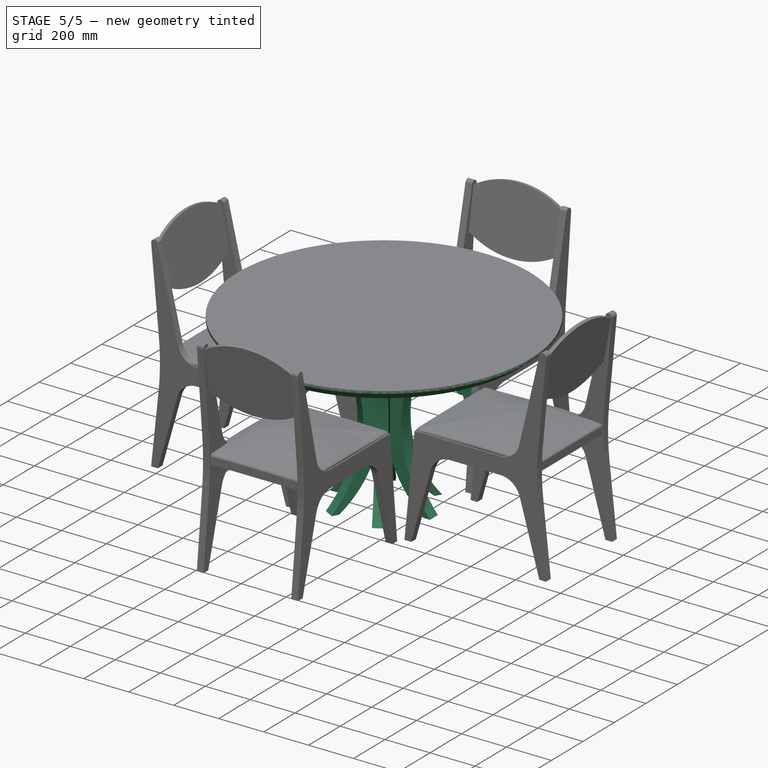
[diagram: stage 5 of 5 — iso view after this stage's code; geometry added in this stage tinted green]
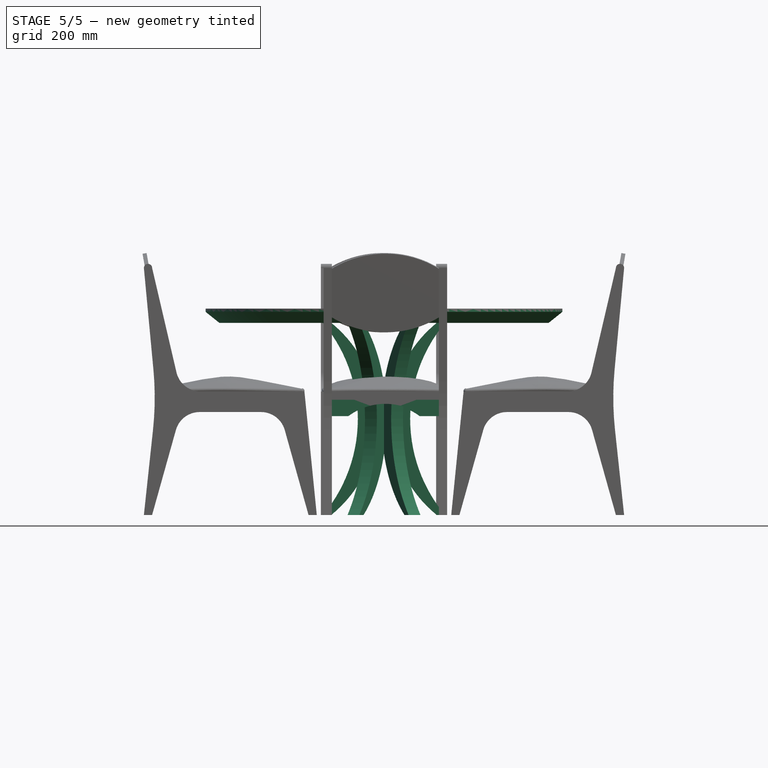
[diagram: stage 5 of 5 — front view after this stage's code; geometry added in this stage tinted green]
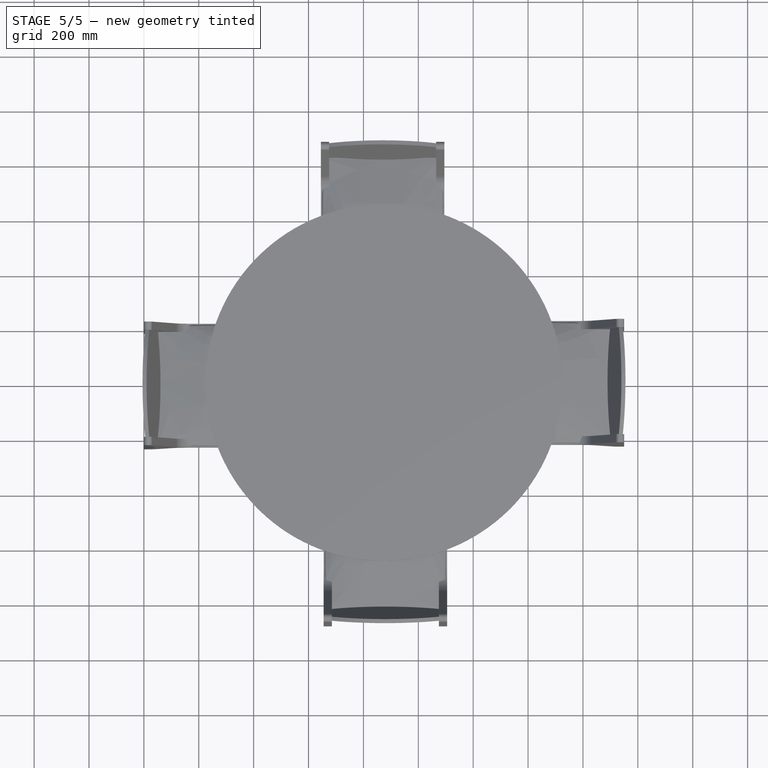
[diagram: stage 5 of 5 — top view after this stage's code; geometry added in this stage tinted green]
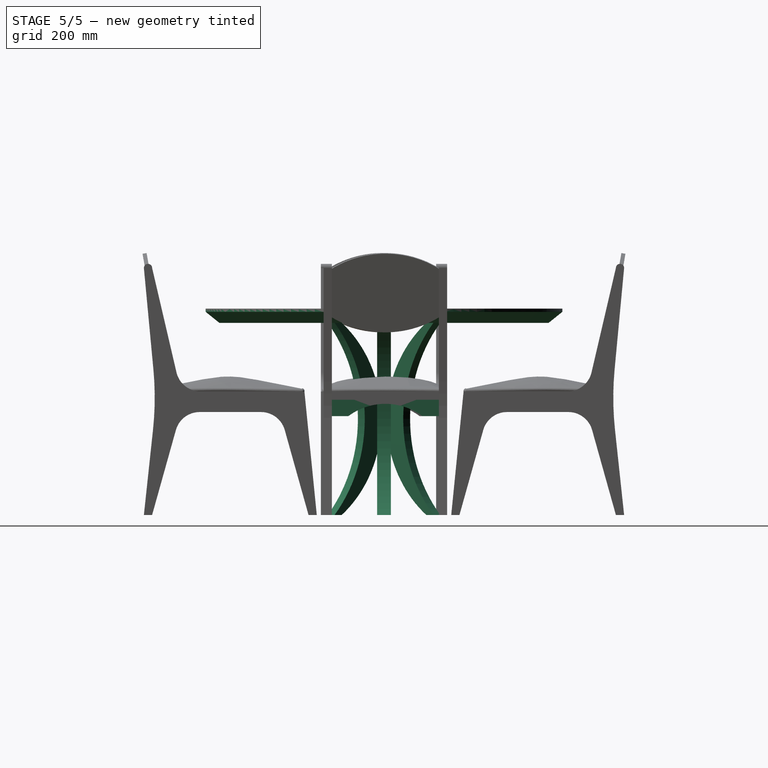
[diagram: stage 5 of 5 — right view after this stage's code; geometry added in this stage tinted green]
FEATURE [Sketcher::SketchObject] Sketch001
  FullyConstrained = true
  Placement = pos=(0,0,0) rot=(1,0,0;1.5708rad)
  expr: Constraints[12] = <<Propriedades Mesa Circular>>.Altura / 4.5
  expr: Constraints[13] = <<Propriedades Mesa Circular>>.Altura * 0.6
  expr: Constraints[1] = <<Propriedades Mesa Circular>>.Altura - <<Propriedades Mesa Circular>>.EspessuraTampo
  expr: Constraints[2] = (<<Propriedades Mesa Circular>>.Altura - <<Propriedades Mesa Circular>>.EspessuraTampo) / 2
  sketch-geometry (4):
    g0: ArcOfCircle CenterX=450 CenterY=350 CenterZ=0 NormalX=0 NormalY=0 NormalZ=1 AngleXU=0 Radius=450 StartAngle=2.25047 EndAngle=4.03272
    g1: LineSegment StartX=167.157 StartY=700 StartZ=0 EndX=197.157 EndY=700 EndZ=0
    g2: LineSegment StartX=167.157 StartY=1.2506e-12 StartZ=0 EndX=197.157 EndY=1.9895e-12 EndZ=0
    g3: ArcOfCircle CenterX=616.667 CenterY=350 CenterZ=0 NormalX=0 NormalY=0 NormalZ=1 AngleXU=0 Radius=546.341 StartAngle=2.44628 EndAngle=3.83691
  constraints (14):
    c: PointOnObject(g0,g-1)
    c: DistanceY(g-1,g0) = 700
    c: DistanceY(g0) = 350
    c: Tangent(g0,g-2)
    c: Coincident(g1,g0)
    c: Horizontal(g1)
    c: Coincident(g2,g0)
    c: Equal(g2,g1)
    c: Coincident(g3,g2)
    c: Coincident(g1,g3)
    c: DistanceX(g1,g1) = 30
    c: PointOnObject(g2,g-1)
    c: DistanceX(g0,g3) = 166.667
    c: DistanceX(g-1,g0) = 450
FEATURE [Part::Extrusion] Extrude
  Base = -> Sketch001
  Dir = (0,-1,2e-16)
  DirMode = 2
  FaceMakerClass = Part::FaceMakerBullseye
  LengthFwd = 25
  LengthRev = 25
  Placement = pos=(25,0,0) rot=(0,0,1;0rad)
  Solid = true
  Symmetric = false
  expr: .Placement.Base.x = <<Propriedades Mesa Circular>>.EspessuraPe / 2
  expr: LengthFwd = <<Propriedades Mesa Circular>>.EspessuraPe / 2
  expr: LengthRev = <<Propriedades Mesa Circular>>.EspessuraPe / 2
FEATURE [Part::FeaturePython] Array  label="Pés-mesa"  # Draft array (typed FeaturePython)
  Angle = 360
  ArrayType = 1
  Axis = (0,0,1)
  Base = -> Extrude
  Center = (0,0,0)
  Count = 6
  Fuse = true
  IntervalAxis = (0,0,0)
  IntervalX = (100,0,0)
  IntervalY = (0,100,0)
  IntervalZ = (0,0,100)
  NumberCircles = 6
  NumberPolar = 6
  NumberX = 6
  NumberY = 1
  NumberZ = 1
  Placement = pos=(875,200,0) rot=(0,0,1;0rad)
  RadialDistance = 50
  Symmetry = 1
  TangentialDistance = 25
  expr: .Placement.Base.x = <<Propriedades Mesa Circular>>.Diametro / 2 + <<Propriedades Mesa Circular>>.ComprimentoAcento / 2
FEATURE [Part::FeaturePython] Array001  label="Frente Cadeira"  # Draft array (typed FeaturePython)
  Angle = 360
  ArrayType = 1
  Axis = (0,0,1)
  Base = -> Extrude002
  Center = (875,200,0)
  Count = 4
  Fuse = true
  IntervalAxis = (0,0,0)
  IntervalX = (1000,0,0)
  IntervalY = (0,100,0)
  IntervalZ = (0,0,100)
  NumberCircles = 3
  NumberPolar = 4
  NumberX = 2
  NumberY = 1
  NumberZ = 1
  RadialDistance = 50
  Symmetry = 1
  TangentialDistance = 25
  expr: .Center.x = <<Propriedades Mesa Circular>>.Diametro / 2 + <<Propriedades Mesa Circular>>.ComprimentoAcento / 2
  expr: NumberPolar = <<Propriedades Mesa Circular>>.NumeroCadeiras
FEATURE [Part::Compound] Compound  label="Mesa Circulae"
  Links = -> [Body,Array,Array001,Array002,Array003,Array004,Array005,Array006,Extrude006]
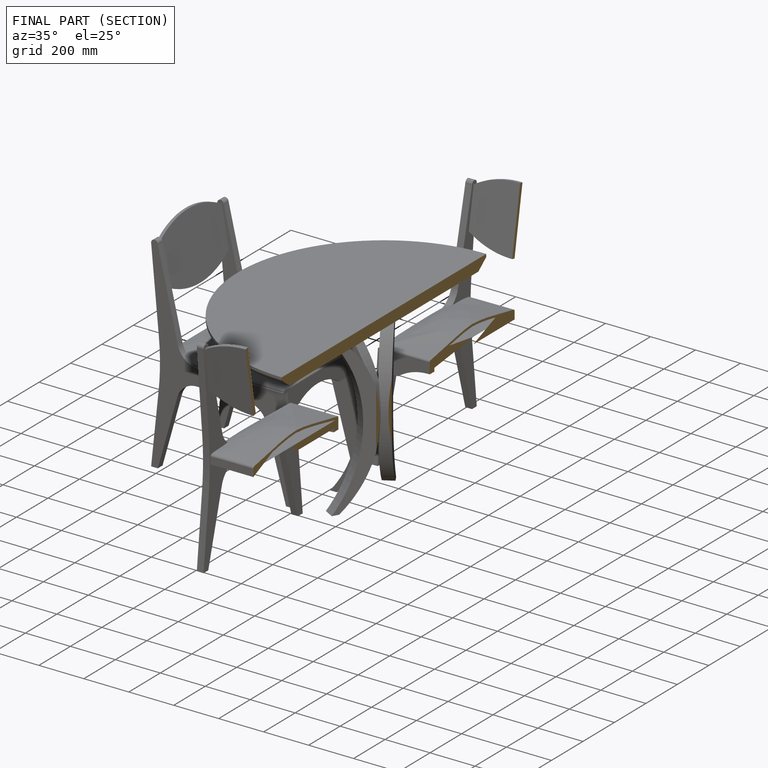
[diagram: finished part — half-section view (interior)]
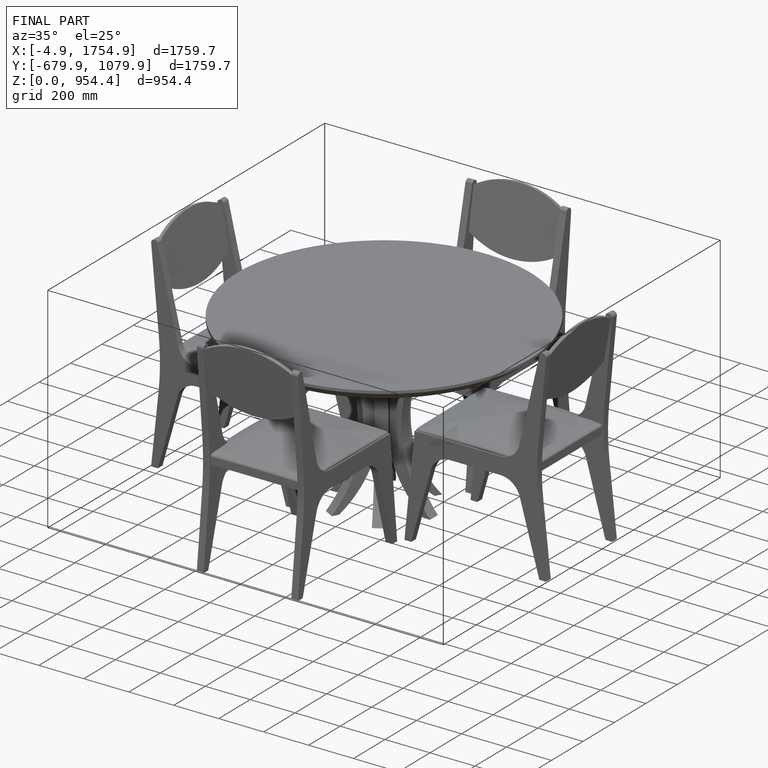
[diagram: finished part — iso view with bounding-box wireframe]
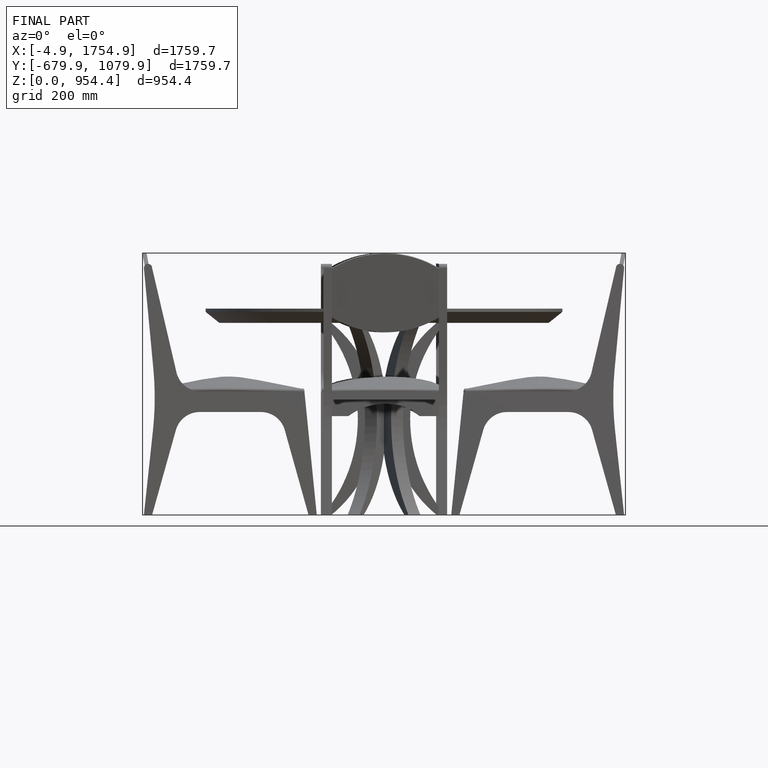
[diagram: finished part — front view with bounding-box wireframe]
